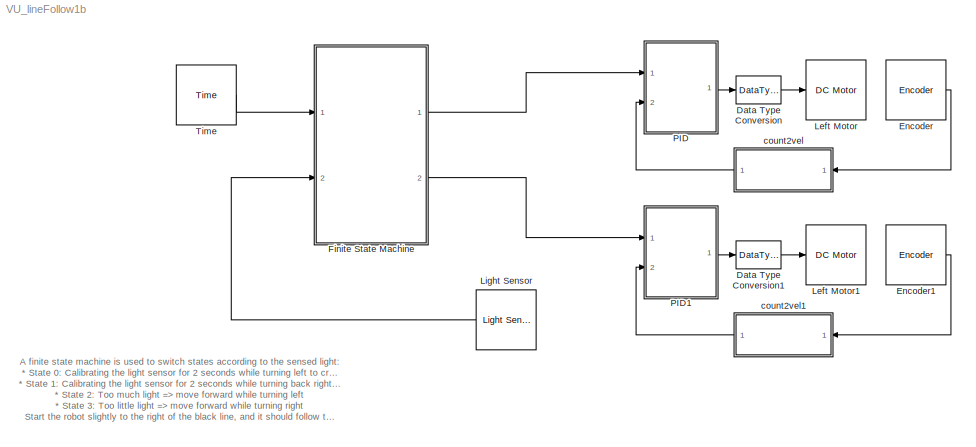
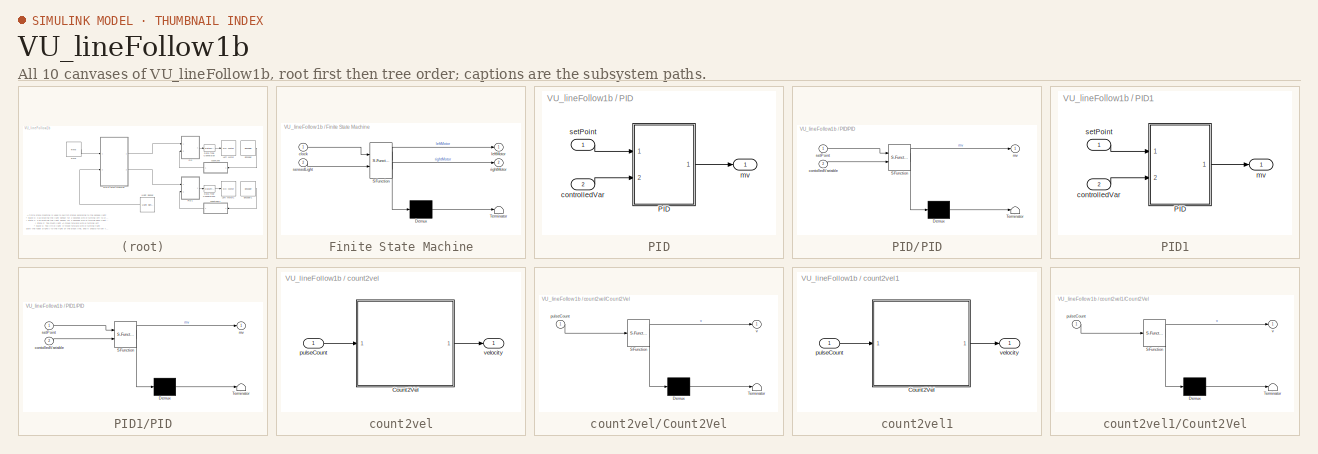
[diagram: thumbnail index - all 10 canvases of the model, root first then tree order]
MODEL VU_lineFollow1b
KIND model
BLOCK [DataTypeConversion] Data Type Conversion
  OutDataTypeStr = int8
  RndMeth = Floor
  SID = 43
BLOCK [DataTypeConversion] Data Type Conversion1
  OutDataTypeStr = int8
  RndMeth = Floor
  SID = 48
BLOCK [Reference] Encoder  REF=lego_nxt_lib/Encoder  (lib defined in mdl_3d9a4c0387f8)
  Ports = [0, 1]
  SID = 37
  SourceBlock = lego_nxt_lib/Encoder
  SourceType = Encoder
  port = Port C
  st = 0.05
BLOCK [Reference] Encoder1  REF=lego_nxt_lib/Encoder  (lib defined in mdl_3d9a4c0387f8)
  Ports = [0, 1]
  SID = 49
  SourceBlock = lego_nxt_lib/Encoder
  SourceType = Encoder
  port = Port B
  st = 0.05
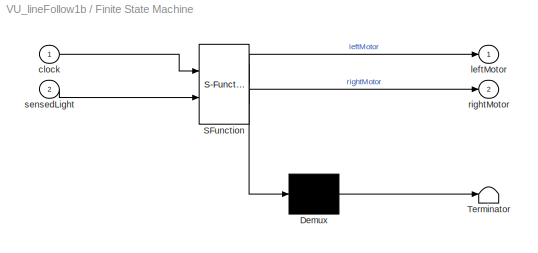
BLOCK [SubSystem] Finite State Machine
  ErrorFcn = Stateflow.Translate.translate
  PermitHierarchicalResolution = ExplicitOnly
  Ports = [2, 2]
  RequestExecContextInheritance = off
  SFBlockType = MATLAB Function
  SID = 35
  TreatAsAtomicUnit = on
BLOCK [Demux] Finite State Machine/ Demux 
  Outputs = 1
  Ports = [1, 1]
  SID = 35::21
BLOCK [S-Function] Finite State Machine/ SFunction 
  EnableBusSupport = off
  FunctionName = sf_sfun
  PortCounts = [2 3]
  Ports = [2, 3]
  SFcnIsStateOwnerBlock = off
  SFunctionDeploymentMode = off
  SID = 35::20
  Tag = Stateflow S-Function 2
BLOCK [Terminator] Finite State Machine/ Terminator 
  SID = 35::22
BLOCK [Inport] Finite State Machine/clock
  IconDisplay = Port number
  SID = 35::18
BLOCK [Outport] Finite State Machine/leftMotor
  IconDisplay = Port number
  SID = 35::5
BLOCK [Outport] Finite State Machine/rightMotor
  IconDisplay = Port number
  Port = 2
  SID = 35::19
BLOCK [Inport] Finite State Machine/sensedLight
  IconDisplay = Port number
  Port = 2
  SID = 35::1
BLOCK [Reference] Left Motor  REF=lego_nxt_lib/DC Motor  (lib defined in mdl_3d9a4c0387f8)
  Ports = [1]
  SID = 25
  SourceBlock = lego_nxt_lib/DC Motor
  SourceType = Servo Motor (Simple)
  brake = Coast
  port = Port C
BLOCK [Reference] Left Motor1  REF=lego_nxt_lib/DC Motor  (lib defined in mdl_3d9a4c0387f8)
  Ports = [1]
  SID = 50
  SourceBlock = lego_nxt_lib/DC Motor
  SourceType = Servo Motor (Simple)
  brake = Coast
  port = Port B
BLOCK [Reference] Light Sensor  REF=lego_nxt_lib/Light Sensor  (lib defined in mdl_3d9a4c0387f8)
  Ports = [0, 1]
  SID = 26
  SourceBlock = lego_nxt_lib/Light Sensor
  SourceType = Light Sensor
  port = Port 3
  st = 0.05
BLOCK [SubSystem] PID
  Ports = [2, 1]
  RequestExecContextInheritance = off
  SID = 38
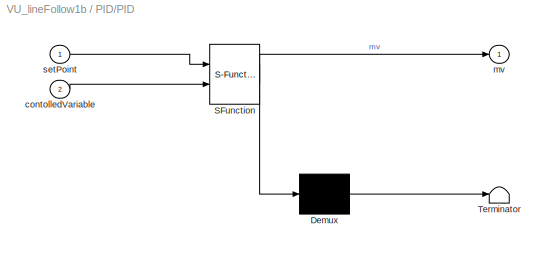
BLOCK [SubSystem] PID/PID
  ErrorFcn = Stateflow.Translate.translate
  PermitHierarchicalResolution = ExplicitOnly
  Ports = [2, 1]
  RequestExecContextInheritance = off
  SFBlockType = MATLAB Function
  SID = 41
  TreatAsAtomicUnit = on
BLOCK [Demux] PID/PID/ Demux 
  Outputs = 1
  Ports = [1, 1]
  SID = 41::14
BLOCK [S-Function] PID/PID/ SFunction 
  EnableBusSupport = off
  FunctionName = sf_sfun
  Parameters = Kc,Td,Ti,mvMax,mvMin
  PortCounts = [2 2]
  Ports = [2, 2]
  SFcnIsStateOwnerBlock = off
  SFunctionDeploymentMode = off
  SID = 41::13
  Tag = Stateflow S-Function 1
BLOCK [Terminator] PID/PID/ Terminator 
  SID = 41::15
BLOCK [Inport] PID/PID/contolledVariable
  IconDisplay = Port number
  Port = 2
  SID = 41::2
BLOCK [Outport] PID/PID/mv
  IconDisplay = Port number
  SID = 41::8
BLOCK [Inport] PID/PID/setPoint
  IconDisplay = Port number
  SID = 41::1
BLOCK [Inport] PID/controlledVar
  IconDisplay = Port number
  Port = 2
  SID = 40
BLOCK [Outport] PID/mv
  IconDisplay = Port number
  SID = 42
BLOCK [Inport] PID/setPoint
  IconDisplay = Port number
  SID = 39
BLOCK [SubSystem] PID1
  Ports = [2, 1]
  RequestExecContextInheritance = off
  SID = 51
BLOCK [SubSystem] PID1/PID
  ErrorFcn = Stateflow.Translate.translate
  PermitHierarchicalResolution = ExplicitOnly
  Ports = [2, 1]
  RequestExecContextInheritance = off
  SFBlockType = MATLAB Function
  SID = 54
  TreatAsAtomicUnit = on
BLOCK [Demux] PID1/PID/ Demux 
  Outputs = 1
  Ports = [1, 1]
  SID = 54::14
BLOCK [S-Function] PID1/PID/ SFunction 
  EnableBusSupport = off
  FunctionName = sf_sfun
  Parameters = Kc,Td,Ti,mvMax,mvMin
  PortCounts = [2 2]
  Ports = [2, 2]
  SFcnIsStateOwnerBlock = off
  SFunctionDeploymentMode = off
  SID = 54::13
  Tag = Stateflow S-Function 3
BLOCK [Terminator] PID1/PID/ Terminator 
  SID = 54::15
BLOCK [Inport] PID1/PID/contolledVariable
  IconDisplay = Port number
  Port = 2
  SID = 54::2
BLOCK [Outport] PID1/PID/mv
  IconDisplay = Port number
  SID = 54::8
BLOCK [Inport] PID1/PID/setPoint
  IconDisplay = Port number
  SID = 54::1
BLOCK [Inport] PID1/controlledVar
  IconDisplay = Port number
  Port = 2
  SID = 53
BLOCK [Outport] PID1/mv
  IconDisplay = Port number
  SID = 55
BLOCK [Inport] PID1/setPoint
  IconDisplay = Port number
  SID = 52
BLOCK [Reference] Time  REF=lego_nxt_lib/Time  (lib defined in mdl_3d9a4c0387f8)
  Ports = [0, 1]
  SID = 36
  SourceBlock = lego_nxt_lib/Time
  SourceType = System Clock
  st = 0.05
BLOCK [SubSystem] count2vel
  Ports = [1, 1]
  RequestExecContextInheritance = off
  SID = 44
BLOCK [SubSystem] count2vel/Count2Vel
  ErrorFcn = Stateflow.Translate.translate
  PermitHierarchicalResolution = ExplicitOnly
  Ports = [1, 1]
  RequestExecContextInheritance = off
  SFBlockType = MATLAB Function
  SID = 46
  TreatAsAtomicUnit = on
BLOCK [Demux] count2vel/Count2Vel/ Demux 
  Outputs = 1
  Ports = [1, 1]
  SID = 46::11
BLOCK [S-Function] count2vel/Count2Vel/ SFunction 
  EnableBusSupport = off
  FunctionName = sf_sfun
  Parameters = gainFactor
  PortCounts = [1 2]
  Ports = [1, 2]
  SFcnIsStateOwnerBlock = off
  SFunctionDeploymentMode = off
  SID = 46::10
  Tag = Stateflow S-Function 14
BLOCK [Terminator] count2vel/Count2Vel/ Terminator 
  SID = 46::12
BLOCK [Inport] count2vel/Count2Vel/pulseCount
  IconDisplay = Port number
  SID = 46::1
BLOCK [Outport] count2vel/Count2Vel/v
  IconDisplay = Port number
  SID = 46::5
BLOCK [Inport] count2vel/pulseCount
  IconDisplay = Port number
  SID = 45
BLOCK [Outport] count2vel/velocity
  IconDisplay = Port number
  SID = 47
BLOCK [SubSystem] count2vel1
  Ports = [1, 1]
  RequestExecContextInheritance = off
  SID = 56
BLOCK [SubSystem] count2vel1/Count2Vel
  ErrorFcn = Stateflow.Translate.translate
  PermitHierarchicalResolution = ExplicitOnly
  Ports = [1, 1]
  RequestExecContextInheritance = off
  SFBlockType = MATLAB Function
  SID = 58
  TreatAsAtomicUnit = on
BLOCK [Demux] count2vel1/Count2Vel/ Demux 
  Outputs = 1
  Ports = [1, 1]
  SID = 58::11
BLOCK [S-Function] count2vel1/Count2Vel/ SFunction 
  EnableBusSupport = off
  FunctionName = sf_sfun
  Parameters = gainFactor
  PortCounts = [1 2]
  Ports = [1, 2]
  SFcnIsStateOwnerBlock = off
  SFunctionDeploymentMode = off
  SID = 58::10
  Tag = Stateflow S-Function 4
BLOCK [Terminator] count2vel1/Count2Vel/ Terminator 
  SID = 58::12
BLOCK [Inport] count2vel1/Count2Vel/pulseCount
  IconDisplay = Port number
  SID = 58::1
BLOCK [Outport] count2vel1/Count2Vel/v
  IconDisplay = Port number
  SID = 58::5
BLOCK [Inport] count2vel1/pulseCount
  IconDisplay = Port number
  SID = 57
BLOCK [Outport] count2vel1/velocity
  IconDisplay = Port number
  SID = 59
ANNOTATION (root): A finite state machine is used to switch states according to the sensed light:\n* State 0: Calibrating the light sensor for 2 seconds while turning left to cross the black line\n* State 1: Calibrating the light sensor for 2 seconds while turning back right to the original position\n* State 2: Too much light => move forward while turning left\n* State 3: Too little light => move forward while turni...<+113ch>
LINE Data Type Conversion1:1 -> Left Motor1:1
LINE Data Type Conversion:1 -> Left Motor:1
LINE Encoder1:1 -> count2vel1:1
LINE Encoder:1 -> count2vel:1
LINE Finite State Machine/ Demux :1 -> Finite State Machine/ Terminator :1
LINE Finite State Machine/ SFunction :1 -> Finite State Machine/ Demux :1
LINE Finite State Machine/ SFunction :2 -> Finite State Machine/leftMotor:1
LINE Finite State Machine/ SFunction :3 -> Finite State Machine/rightMotor:1
LINE Finite State Machine/clock:1 -> Finite State Machine/ SFunction :1
LINE Finite State Machine/sensedLight:1 -> Finite State Machine/ SFunction :2
LINE Finite State Machine:1 -> PID:1
LINE Finite State Machine:2 -> PID1:1
LINE Light Sensor:1 -> Finite State Machine:2
LINE PID/PID/ Demux :1 -> PID/PID/ Terminator :1
LINE PID/PID/ SFunction :1 -> PID/PID/ Demux :1
LINE PID/PID/ SFunction :2 -> PID/PID/mv:1
LINE PID/PID/contolledVariable:1 -> PID/PID/ SFunction :2
LINE PID/PID/setPoint:1 -> PID/PID/ SFunction :1
LINE PID/PID:1 -> PID/mv:1
LINE PID/controlledVar:1 -> PID/PID:2
LINE PID/setPoint:1 -> PID/PID:1
LINE PID1/PID/ Demux :1 -> PID1/PID/ Terminator :1
LINE PID1/PID/ SFunction :1 -> PID1/PID/ Demux :1
LINE PID1/PID/ SFunction :2 -> PID1/PID/mv:1
LINE PID1/PID/contolledVariable:1 -> PID1/PID/ SFunction :2
LINE PID1/PID/setPoint:1 -> PID1/PID/ SFunction :1
LINE PID1/PID:1 -> PID1/mv:1
LINE PID1/controlledVar:1 -> PID1/PID:2
LINE PID1/setPoint:1 -> PID1/PID:1
LINE PID1:1 -> Data Type Conversion1:1
LINE PID:1 -> Data Type Conversion:1
LINE Time:1 -> Finite State Machine:1
LINE count2vel/Count2Vel/ Demux :1 -> count2vel/Count2Vel/ Terminator :1
LINE count2vel/Count2Vel/ SFunction :1 -> count2vel/Count2Vel/ Demux :1
LINE count2vel/Count2Vel/ SFunction :2 -> count2vel/Count2Vel/v:1
LINE count2vel/Count2Vel/pulseCount:1 -> count2vel/Count2Vel/ SFunction :1
LINE count2vel/Count2Vel:1 -> count2vel/velocity:1
LINE count2vel/pulseCount:1 -> count2vel/Count2Vel:1
LINE count2vel1/Count2Vel/ Demux :1 -> count2vel1/Count2Vel/ Terminator :1
LINE count2vel1/Count2Vel/ SFunction :1 -> count2vel1/Count2Vel/ Demux :1
LINE count2vel1/Count2Vel/ SFunction :2 -> count2vel1/Count2Vel/v:1
LINE count2vel1/Count2Vel/pulseCount:1 -> count2vel1/Count2Vel/ SFunction :1
LINE count2vel1/Count2Vel:1 -> count2vel1/velocity:1
LINE count2vel1/pulseCount:1 -> count2vel1/Count2Vel:1
LINE count2vel1:1 -> PID1:2
LINE count2vel:1 -> PID:2
CHART PID/PID states=1 transitions=1
  STATE_LABEL 'eML_blk_kernel()'
CHART Finite State Machine states=1 transitions=1
  STATE_LABEL 'eML_blk_kernel()'
CHART PID1/PID states=1 transitions=1
  STATE_LABEL 'eML_blk_kernel()'
CHART count2vel1/Count2Vel states=1 transitions=1
  STATE_LABEL 'eML_blk_kernel()'
CHART count2vel/Count2Vel states=1 transitions=1
  STATE_LABEL 'eML_blk_kernel()'
